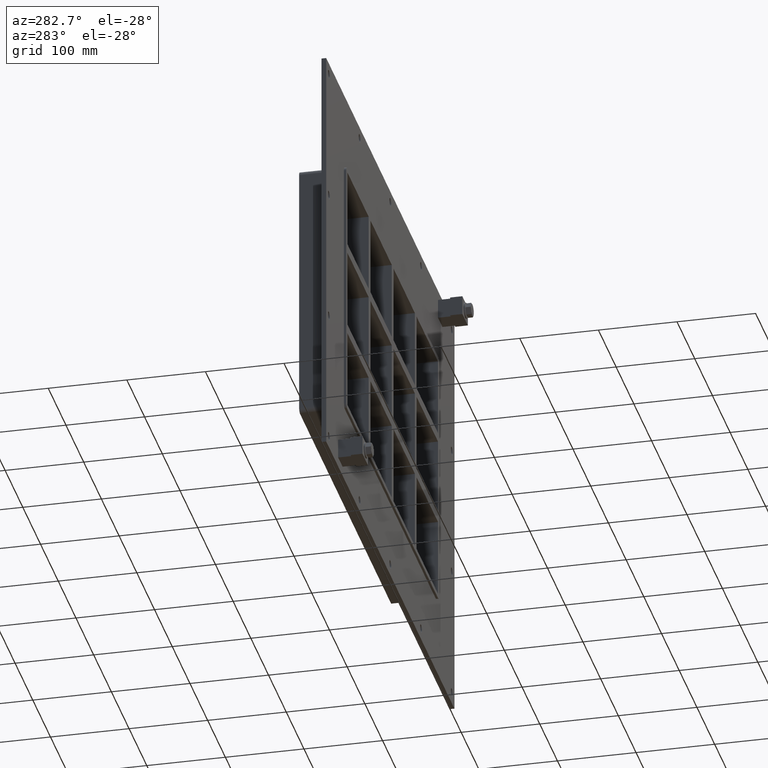
[diagram: clean part render]
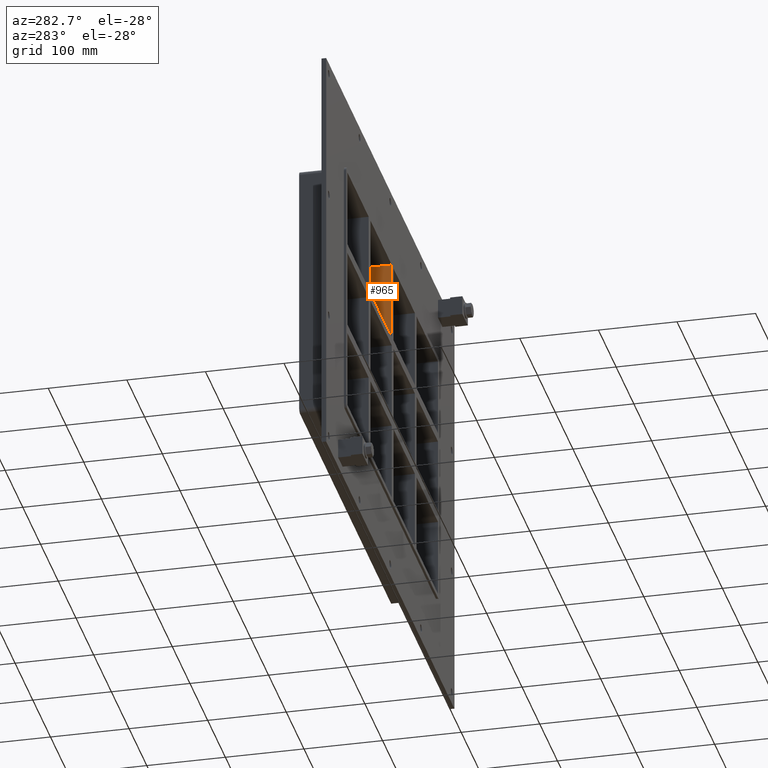
[diagram: same view with one face highlighted and labeled with its STEP entity id]
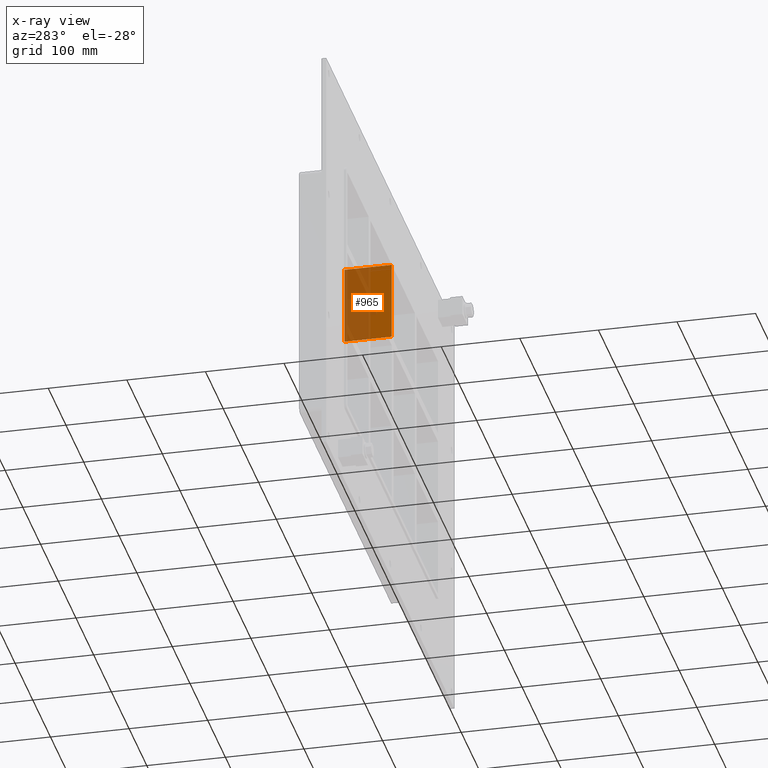
[diagram: x-ray of the same camera — body ghosted, the highlighted face saturated]
A machine part, auxiliary view. The second image highlights one B-rep face of the part: STEP entity #965.
The next image is the same camera in x-ray: the body ghosted, the highlighted face saturated — about 58% of this face is hidden behind the body in this view.
In plain terms, the highlighted planar face has unit normal (-1, 0, 0).
Its self-contained STEP definition (entity closure, byte-faithful):
#705=CARTESIAN_POINT('',(-4.999999999999041,57.0,62.500000000000462));
#706=VERTEX_POINT('',#705);
#707=CARTESIAN_POINT('',(-4.999999999999041,-3.0,62.500000000000462));
#708=VERTEX_POINT('',#707);
#709=CARTESIAN_POINT('',(-4.999999999999059,57.0,62.500000000000462));
#710=DIRECTION('',(0.0,-1.0,0.0));
#711=VECTOR('',#710,60.0);
#712=LINE('',#709,#711);
#713=EDGE_CURVE('',#706,#708,#712,.T.);
#935=CARTESIAN_POINT('',(-4.999999999999041,-3.0,-163.50000000000006));
#936=DIRECTION('',(-1.0,0.0,0.0));
#937=DIRECTION('',(0.0,0.0,1.0));
#938=AXIS2_PLACEMENT_3D('',#935,#936,#937);
#939=PLANE('',#938);
#940=ORIENTED_EDGE('',*,*,#713,.T.);
#941=CARTESIAN_POINT('',(-4.999999999999059,-3.0,163.50000000000006));
#942=VERTEX_POINT('',#941);
#943=CARTESIAN_POINT('',(-4.999999999999053,-3.0,62.500000000000455));
#944=DIRECTION('',(0.0,0.0,1.0));
#945=VECTOR('',#944,100.9999999999996);
#946=LINE('',#943,#945);
#947=EDGE_CURVE('',#708,#942,#946,.T.);
#948=ORIENTED_EDGE('',*,*,#947,.T.);
#949=CARTESIAN_POINT('',(-4.999999999999059,57.0,163.50000000000006));
#950=VERTEX_POINT('',#949);
#951=CARTESIAN_POINT('',(-4.999999999999067,57.000000000000007,163.50000000000006));
#952=DIRECTION('',(0.0,-1.0,0.0));
#953=VECTOR('',#952,60.000000000000007);
#954=LINE('',#951,#953);
#955=EDGE_CURVE('',#950,#942,#954,.T.);
#956=ORIENTED_EDGE('',*,*,#955,.F.);
#957=CARTESIAN_POINT('',(-4.999999999999053,57.0,62.500000000000455));
#958=DIRECTION('',(0.0,0.0,1.0));
#959=VECTOR('',#958,100.9999999999996);
#960=LINE('',#957,#959);
#961=EDGE_CURVE('',#706,#950,#960,.T.);
#962=ORIENTED_EDGE('',*,*,#961,.F.);
#963=EDGE_LOOP('',(#940,#948,#956,#962));
#964=FACE_OUTER_BOUND('',#963,.T.);
#965=ADVANCED_FACE('',(#964),#939,.T.);